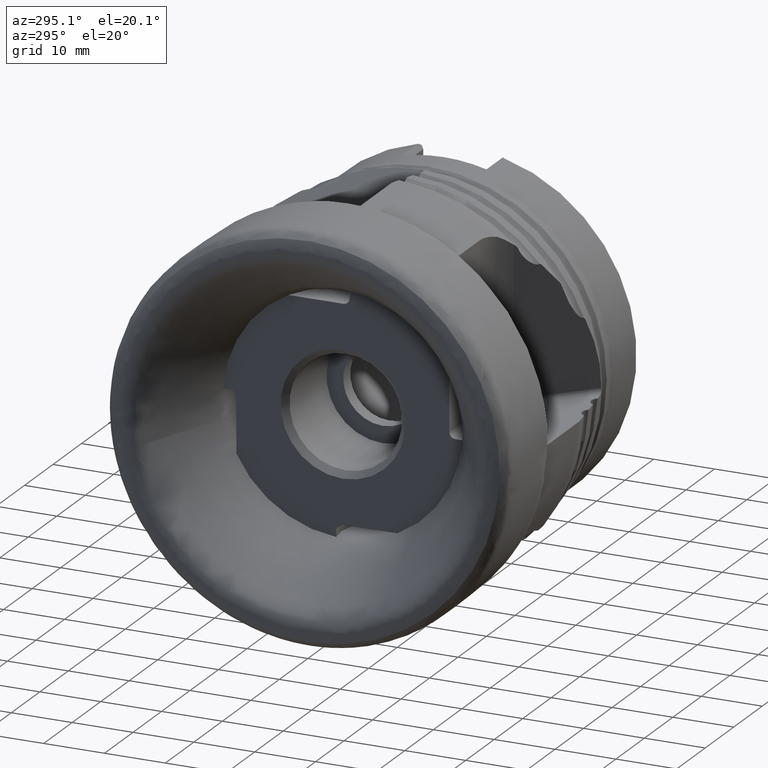
[diagram: clean part render]
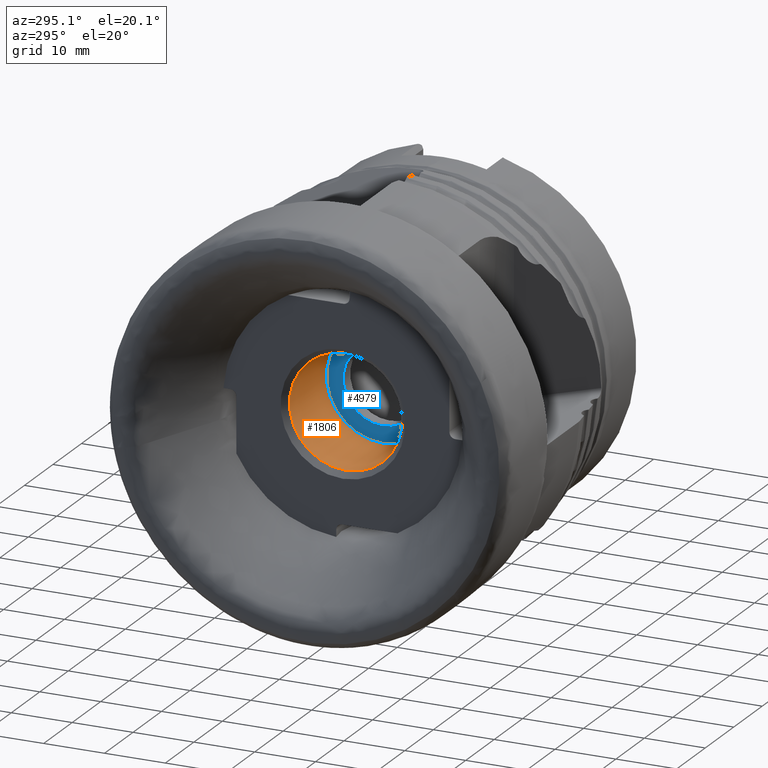
[diagram: same view with the hole feature highlighted: cylindrical wall and planar end face, labeled with their STEP entity ids]
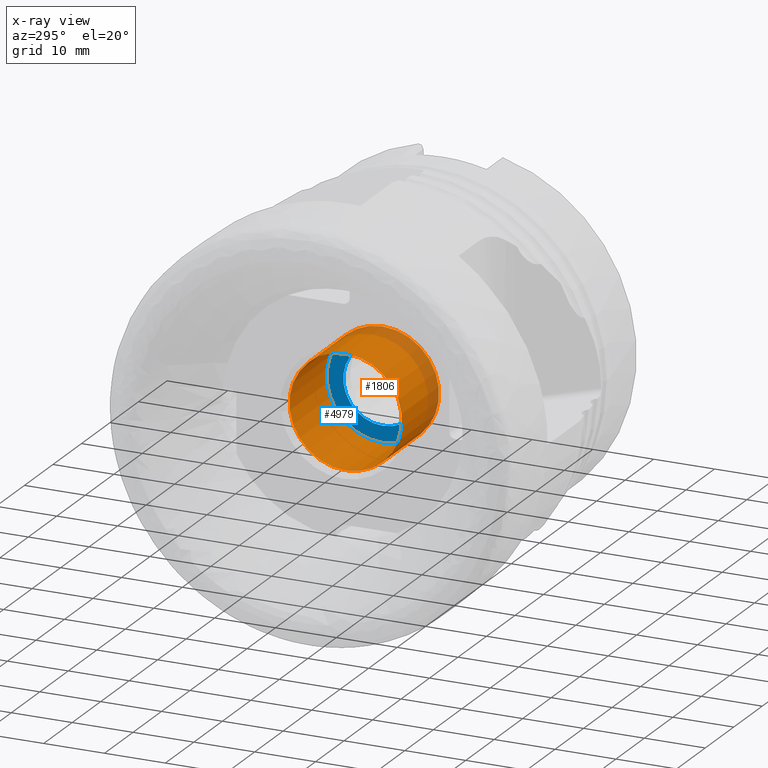
[diagram: x-ray of the same camera — body ghosted, the hole faces saturated]
A machine part, auxiliary view. The highlighted faces form one hole feature of diameter 18.5 mm: the cylindrical wall (entity #1806, orange) and its adjacent planar end face (entity #4979, blue) — they share a circular edge in the B-rep.
The next image is the same camera in x-ray (body ghosted, the hole faces saturated) — the bore reads through the body.
Wall:
#706 = CYLINDRICAL_SURFACE ( 'NONE', #3495, 9.249999999999998200 ) ;
#1288 = EDGE_CURVE ( 'NONE', #3592, #3592, #1492, .T. ) ;
#1492 = CIRCLE ( 'NONE', #5151, 9.249999999999998200 ) ;
#1806 = ADVANCED_FACE ( 'NONE', ( #4913, #2306 ), #706, .F. ) ;
#1868 = EDGE_CURVE ( 'NONE', #2125, #2125, #6143, .T. ) ;
#2125 = VERTEX_POINT ( 'NONE', #5419 ) ;
#2163 = ORIENTED_EDGE ( 'NONE', *, *, #1288, .T. ) ;
#2306 = FACE_OUTER_BOUND ( 'NONE', #5519, .T. ) ;
#2411 = CARTESIAN_POINT ( 'NONE',  ( 26.29999999999999700, 0.0000000000000000000, 0.0000000000000000000 ) ) ;
#2437 = DIRECTION ( 'NONE',  ( -1.000000000000000000, -0.0000000000000000000, -0.0000000000000000000 ) ) ;
#2481 = DIRECTION ( 'NONE',  ( 0.0000000000000000000, 0.0000000000000000000, 1.000000000000000000 ) ) ;
#2797 = CARTESIAN_POINT ( 'NONE',  ( 13.29999999999999500, 0.0000000000000000000, 9.249999999999998200 ) ) ;
#3140 = AXIS2_PLACEMENT_3D ( 'NONE', #2411, #2437, #2481 ) ;
#3335 = CARTESIAN_POINT ( 'NONE',  ( 13.29999999999999500, 0.0000000000000000000, 0.0000000000000000000 ) ) ;
#3352 = DIRECTION ( 'NONE',  ( -1.000000000000000000, -0.0000000000000000000, -0.0000000000000000000 ) ) ;
#3483 = DIRECTION ( 'NONE',  ( 0.0000000000000000000, 0.0000000000000000000, 1.000000000000000000 ) ) ;
#3495 = AXIS2_PLACEMENT_3D ( 'NONE', #5189, #4990, #5049 ) ;
#3592 = VERTEX_POINT ( 'NONE', #2797 ) ;
#4566 = EDGE_LOOP ( 'NONE', ( #2163 ) ) ;
#4913 = FACE_OUTER_BOUND ( 'NONE', #4566, .T. ) ;
#4990 = DIRECTION ( 'NONE',  ( -1.000000000000000000, -0.0000000000000000000, -0.0000000000000000000 ) ) ;
#5049 = DIRECTION ( 'NONE',  ( 0.0000000000000000000, 0.0000000000000000000, 1.000000000000000000 ) ) ;
#5151 = AXIS2_PLACEMENT_3D ( 'NONE', #3335, #3352, #3483 ) ;
#5189 = CARTESIAN_POINT ( 'NONE',  ( 0.0000000000000000000, 0.0000000000000000000, 0.0000000000000000000 ) ) ;
#5419 = CARTESIAN_POINT ( 'NONE',  ( 26.29999999999999700, 0.0000000000000000000, 9.250000000000000000 ) ) ;
#5519 = EDGE_LOOP ( 'NONE', ( #6084 ) ) ;
#6084 = ORIENTED_EDGE ( 'NONE', *, *, #1868, .F. ) ;
#6143 = CIRCLE ( 'NONE', #3140, 9.250000000000000000 ) ;
End face:
#1052 = CIRCLE ( 'NONE', #2447, 6.500000000000000000 ) ;
#1158 = DIRECTION ( 'NONE',  ( -0.0000000000000000000, 0.0000000000000000000, 1.000000000000000000 ) ) ;
#1735 = EDGE_CURVE ( 'NONE', #3428, #3428, #1052, .T. ) ;
#1785 = ORIENTED_EDGE ( 'NONE', *, *, #1868, .T. ) ;
#1868 = EDGE_CURVE ( 'NONE', #2125, #2125, #6143, .T. ) ;
#2125 = VERTEX_POINT ( 'NONE', #5419 ) ;
#2305 = EDGE_LOOP ( 'NONE', ( #1785 ) ) ;
#2330 = AXIS2_PLACEMENT_3D ( 'NONE', #4327, #4350, #1158 ) ;
#2411 = CARTESIAN_POINT ( 'NONE',  ( 26.29999999999999700, 0.0000000000000000000, 0.0000000000000000000 ) ) ;
#2437 = DIRECTION ( 'NONE',  ( -1.000000000000000000, -0.0000000000000000000, -0.0000000000000000000 ) ) ;
#2447 = AXIS2_PLACEMENT_3D ( 'NONE', #5280, #5271, #5265 ) ;
#2481 = DIRECTION ( 'NONE',  ( 0.0000000000000000000, 0.0000000000000000000, 1.000000000000000000 ) ) ;
#2585 = ORIENTED_EDGE ( 'NONE', *, *, #1735, .F. ) ;
#3140 = AXIS2_PLACEMENT_3D ( 'NONE', #2411, #2437, #2481 ) ;
#3270 = PLANE ( 'NONE',  #2330 ) ;
#3428 = VERTEX_POINT ( 'NONE', #3859 ) ;
#3647 = EDGE_LOOP ( 'NONE', ( #2585 ) ) ;
#3859 = CARTESIAN_POINT ( 'NONE',  ( 26.29999999999999700, 0.0000000000000000000, 6.500000000000000000 ) ) ;
#4327 = CARTESIAN_POINT ( 'NONE',  ( 26.29999999999999700, 6.500000000000000000, 0.0000000000000000000 ) ) ;
#4350 = DIRECTION ( 'NONE',  ( -1.000000000000000000, 0.0000000000000000000, -0.0000000000000000000 ) ) ;
#4979 = ADVANCED_FACE ( 'NONE', ( #6479, #6319 ), #3270, .T. ) ;
#5265 = DIRECTION ( 'NONE',  ( 0.0000000000000000000, 0.0000000000000000000, 1.000000000000000000 ) ) ;
#5271 = DIRECTION ( 'NONE',  ( -1.000000000000000000, -0.0000000000000000000, -0.0000000000000000000 ) ) ;
#5280 = CARTESIAN_POINT ( 'NONE',  ( 26.29999999999999700, 0.0000000000000000000, 0.0000000000000000000 ) ) ;
#5419 = CARTESIAN_POINT ( 'NONE',  ( 26.29999999999999700, 0.0000000000000000000, 9.250000000000000000 ) ) ;
#6143 = CIRCLE ( 'NONE', #3140, 9.250000000000000000 ) ;
#6319 = FACE_BOUND ( 'NONE', #3647, .T. ) ;
#6479 = FACE_OUTER_BOUND ( 'NONE', #2305, .T. ) ;